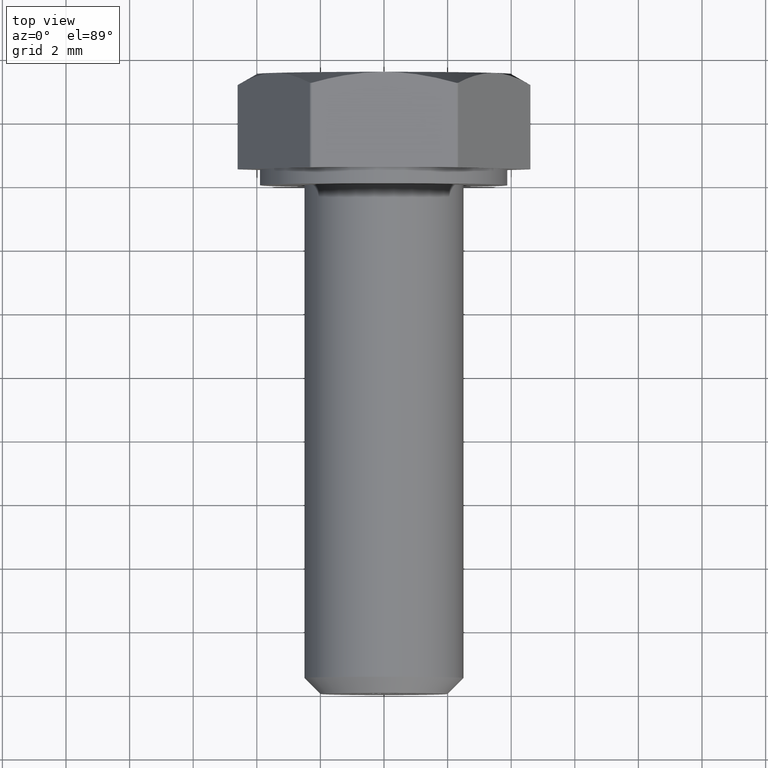
[diagram: clean part render]
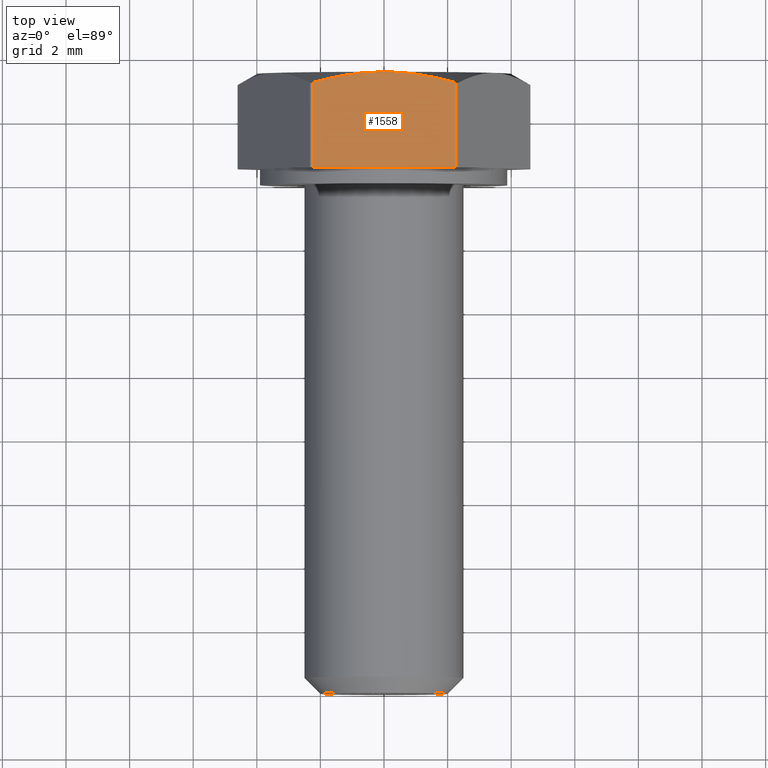
[diagram: same view with one face highlighted and labeled with its STEP entity id]
A machine part, top view. The second image highlights one B-rep face of the part: STEP entity #1558.
In plain terms, the highlighted planar face has unit normal (0, 0, 1).
Its self-contained STEP definition (entity closure, byte-faithful):
#58 = CARTESIAN_POINT ( 'NONE',  ( -2.251666049839551764, 19.15924384871839692, 4.000000000000001776 ) ) ;
#727 = CARTESIAN_POINT ( 'NONE',  ( 0.3804273108413598337, 19.50000000000000000, 4.000000000000001776 ) ) ;
#959 = ORIENTED_EDGE ( 'NONE', *, *, #9864, .T. ) ;
#1558 = ADVANCED_FACE ( 'NONE', ( #8482 ), #4366, .T. ) ;
#2037 = ORIENTED_EDGE ( 'NONE', *, *, #9259, .F. ) ;
#3049 = DIRECTION ( 'NONE',  ( 0.000000000000000000, 0.000000000000000000, 1.000000000000000000 ) ) ;
#3058 = VERTEX_POINT ( 'NONE', #17055 ) ;
#3201 = VERTEX_POINT ( 'NONE', #4501 ) ;
#3232 = DIRECTION ( 'NONE',  ( -1.546508301259165917E-17, -1.000000000000000000, 0.000000000000000000 ) ) ;
#3481 = EDGE_LOOP ( 'NONE', ( #13078, #5114, #3893, #959, #2037 ) ) ;
#3643 = VERTEX_POINT ( 'NONE', #4598 ) ;
#3760 = CARTESIAN_POINT ( 'NONE',  ( 2.251666049838051187, 19.15924384871881969, 4.000000000000001776 ) ) ;
#3893 = ORIENTED_EDGE ( 'NONE', *, *, #12175, .F. ) ;
#3979 = DIRECTION ( 'NONE',  ( -1.000000000000000000, 0.000000000000000000, 0.000000000000000000 ) ) ;
#4264 = CARTESIAN_POINT ( 'NONE',  ( 2.251666049838051187, 19.15924384871881969, 4.000000000000001776 ) ) ;
#4366 = PLANE ( 'NONE',  #4428 ) ;
#4428 = AXIS2_PLACEMENT_3D ( 'NONE', #13775, #3049, #13599 ) ;
#4501 = CARTESIAN_POINT ( 'NONE',  ( 6.163341943537176496E-16, 19.50000000000000355, 4.000000000000000000 ) ) ;
#4556 = B_SPLINE_CURVE_WITH_KNOTS ( 'NONE', 3,
 ( #12745, #727, #9930, #4688, #16553, #3760 ),
 .UNSPECIFIED., .F., .F.,
 ( 4, 2, 4 ),
 ( 0.006456566858647354128, 0.007595307918736936281, 0.008734048978826517567 ),
 .UNSPECIFIED. ) ;
#4598 = CARTESIAN_POINT ( 'NONE',  ( -2.251666049839542882, 16.50000000000000000, 4.000000000000001776 ) ) ;
#4688 = CARTESIAN_POINT ( 'NONE',  ( 1.518298534698278468, 19.34807241956804447, 4.000000000000000888 ) ) ;
#5064 = CARTESIAN_POINT ( 'NONE',  ( 2.309401076758499372, 16.50000000000000000, 4.000000000000001776 ) ) ;
#5114 = ORIENTED_EDGE ( 'NONE', *, *, #15264, .T. ) ;
#5485 = LINE ( 'NONE', #11114, #17041 ) ;
#6595 = VECTOR ( 'NONE', #3979, 1000.000000000000000 ) ;
#6837 = VECTOR ( 'NONE', #10744, 1000.000000000000000 ) ;
#7204 = B_SPLINE_CURVE_WITH_KNOTS ( 'NONE', 3,
 ( #11654, #7555, #10264, #12986, #11536, #16775 ),
 .UNSPECIFIED., .F., .F.,
 ( 4, 2, 4 ),
 ( 0.004180070749600929211, 0.005318318804124141236, 0.006456566858647354128 ),
 .UNSPECIFIED. ) ;
#7555 = CARTESIAN_POINT ( 'NONE',  ( -1.884974447565871625, 19.26309517533214333, 4.000000000000001776 ) ) ;
#7666 = LINE ( 'NONE', #9361, #6837 ) ;
#8482 = FACE_OUTER_BOUND ( 'NONE', #3481, .T. ) ;
#8894 = EDGE_CURVE ( 'NONE', #16665, #3201, #7204, .T. ) ;
#9259 = EDGE_CURVE ( 'NONE', #3201, #9363, #4556, .T. ) ;
#9361 = CARTESIAN_POINT ( 'NONE',  ( 2.251666049839536665, 31.72020185321558472, 4.000000000000001776 ) ) ;
#9363 = VERTEX_POINT ( 'NONE', #4264 ) ;
#9864 = EDGE_CURVE ( 'NONE', #3058, #9363, #7666, .T. ) ;
#9930 = CARTESIAN_POINT ( 'NONE',  ( 0.7660223724771949572, 19.46732392810109857, 4.000000000000002665 ) ) ;
#10264 = CARTESIAN_POINT ( 'NONE',  ( -1.509731132926810160, 19.34982348470177627, 4.000000000000002665 ) ) ;
#10744 = DIRECTION ( 'NONE',  ( 1.546508301259165609E-17, 1.000000000000000000, -0.000000000000000000 ) ) ;
#11114 = CARTESIAN_POINT ( 'NONE',  ( -2.251666049839543327, 31.72020185321558472, 4.000000000000001776 ) ) ;
#11536 = CARTESIAN_POINT ( 'NONE',  ( -0.3802626089715339663, 19.50000000000000355, 4.000000000000001776 ) ) ;
#11654 = CARTESIAN_POINT ( 'NONE',  ( -2.251666049839551764, 19.15924384871839692, 4.000000000000001776 ) ) ;
#12175 = EDGE_CURVE ( 'NONE', #3058, #3643, #16097, .T. ) ;
#12745 = CARTESIAN_POINT ( 'NONE',  ( 6.163341943537176496E-16, 19.50000000000000355, 4.000000000000000000 ) ) ;
#12986 = CARTESIAN_POINT ( 'NONE',  ( -0.7581263831478566306, 19.46817395456102773, 4.000000000000000888 ) ) ;
#13078 = ORIENTED_EDGE ( 'NONE', *, *, #8894, .F. ) ;
#13599 = DIRECTION ( 'NONE',  ( 1.000000000000000000, 0.000000000000000000, -0.000000000000000000 ) ) ;
#13775 = CARTESIAN_POINT ( 'NONE',  ( 2.309401076758499816, 31.72020185321558472, 4.000000000000001776 ) ) ;
#15264 = EDGE_CURVE ( 'NONE', #16665, #3643, #5485, .T. ) ;
#16097 = LINE ( 'NONE', #5064, #6595 ) ;
#16553 = CARTESIAN_POINT ( 'NONE',  ( 1.887363106462591977, 19.26241867935095442, 4.000000000000001776 ) ) ;
#16665 = VERTEX_POINT ( 'NONE', #58 ) ;
#16775 = CARTESIAN_POINT ( 'NONE',  ( 6.163341943537176496E-16, 19.50000000000000355, 4.000000000000000000 ) ) ;
#17041 = VECTOR ( 'NONE', #3232, 1000.000000000000000 ) ;
#17055 = CARTESIAN_POINT ( 'NONE',  ( 2.251666049839536665, 16.50000000000000000, 4.000000000000001776 ) ) ;